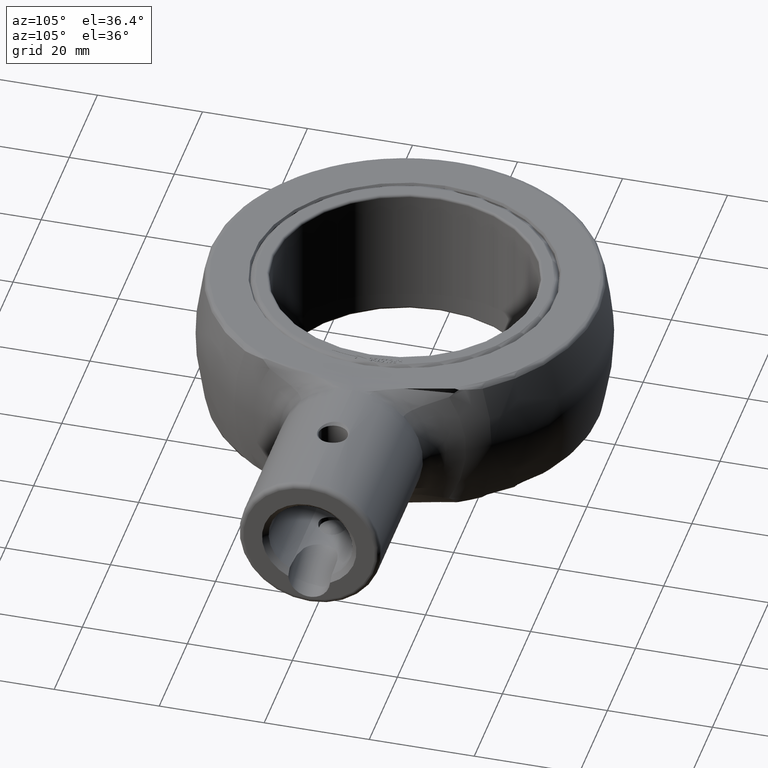
[diagram: clean part render]
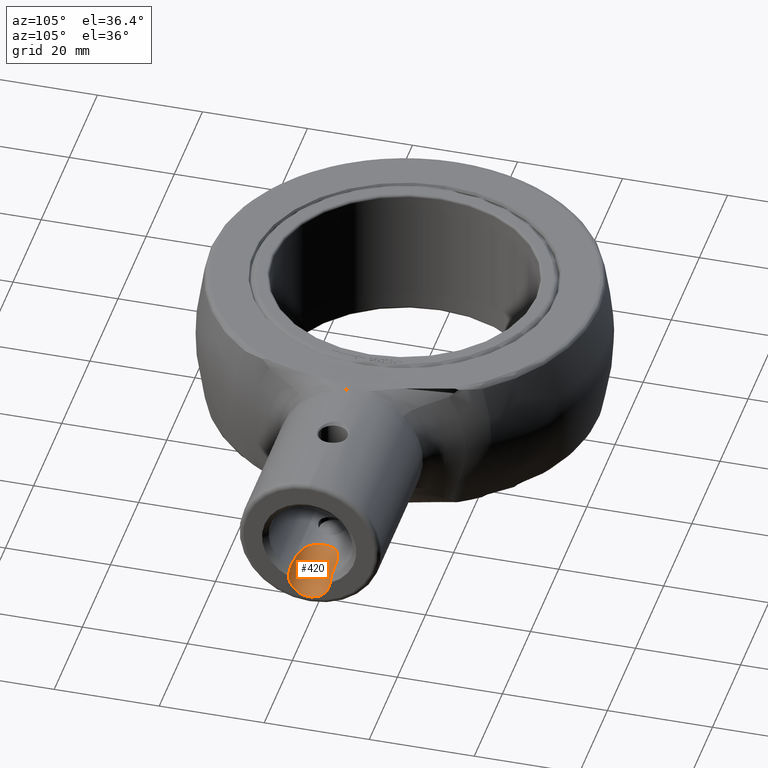
[diagram: same view with one face highlighted and labeled with its STEP entity id]
A machine part, auxiliary view. The second image highlights one B-rep face of the part: STEP entity #420.
In plain terms, the highlighted cylindrical surface (edge-blend (fillet) strip) has radius 4 mm, axis along (0.9397, 0, -0.342).
Its self-contained STEP definition (entity closure, byte-faithful):
#420 = ADVANCED_FACE( '', ( #862 ), #863, .F. );
#862 = FACE_OUTER_BOUND( '', #2805, .T. );
#863 = CYLINDRICAL_SURFACE( '', #2806, 4.00000000000000 );
#2805 = EDGE_LOOP( '', ( #4022, #4023, #4024, #4025, #4026, #4027 ) );
#2806 = AXIS2_PLACEMENT_3D( '', #4028, #4029, #4030 );
#4022 = ORIENTED_EDGE( '', *, *, #4435, .F. );
#4023 = ORIENTED_EDGE( '', *, *, #4604, .F. );
#4024 = ORIENTED_EDGE( '', *, *, #4617, .F. );
#4025 = ORIENTED_EDGE( '', *, *, #4554, .T. );
#4026 = ORIENTED_EDGE( '', *, *, #4437, .F. );
#4027 = ORIENTED_EDGE( '', *, *, #4754, .T. );
#4028 = CARTESIAN_POINT( '', ( 114.458834932347, 0.000000000000000, -24.6496330340612 ) );
#4029 = DIRECTION( '', ( 0.939692620785908, -0.000000000000000, -0.342020143325669 ) );
#4030 = DIRECTION( '', ( 0.342020143325669, 0.000000000000000, 0.939692620785908 ) );
#4435 = EDGE_CURVE( '', #4849, #4852, #4853, .T. );
#4437 = EDGE_CURVE( '', #4854, #4856, #4857, .T. );
#4554 = EDGE_CURVE( '', #5054, #4856, #5055, .T. );
#4604 = EDGE_CURVE( '', #5131, #4849, #5133, .T. );
#4617 = EDGE_CURVE( '', #5054, #5131, #5152, .T. );
#4754 = EDGE_CURVE( '', #4854, #4852, #5352, .F. );
#4849 = VERTEX_POINT( '', #5576 );
#4852 = VERTEX_POINT( '', #5582 );
#4853 = B_SPLINE_CURVE_WITH_KNOTS( '', 3, ( #5583, #5584, #5585, #5586 ), .UNSPECIFIED., .F., .F., ( 4, 4 ), ( -0.000205837076860266, 0.000437047054691737 ), .UNSPECIFIED. );
#4854 = VERTEX_POINT( '', #5587 );
#4856 = VERTEX_POINT( '', #5589 );
#4857 = B_SPLINE_CURVE_WITH_KNOTS( '', 3, ( #5590, #5591, #5592, #5593 ), .UNSPECIFIED., .F., .F., ( 4, 4 ), ( 3.04000446895297E-007, 0.000643188131998897 ), .UNSPECIFIED. );
#5054 = VERTEX_POINT( '', #6075 );
#5055 = LINE( '', #6076, #6077 );
#5131 = VERTEX_POINT( '', #6386 );
#5133 = LINE( '', #6389, #6390 );
#5152 = B_SPLINE_CURVE_WITH_KNOTS( '', 3, ( #6521, #6522, #6523, #6524, #6525, #6526, #6527, #6528, #6529, #6530, #6531, #6532, #6533, #6534, #6535, #6536, #6537, #6538, #6539, #6540, #6541, #6542, #6543, #6544, #6545, #6546, #6547, #6548, #6549, #6550, #6551, #6552, #6553, #6554, #6555, #6556, #6557, #6558, #6559, #6560, #6561, #6562 ), .UNSPECIFIED., .F., .F., ( 4, 2, 2, 2, 2, 2, 2, 2, 2, 2, 2, 2, 2, 2, 2, 2, 2, 2, 2, 2, 4 ), ( 0.000000000000000, 0.00264265898961198, 0.00396398848441800, 0.00528531797922401, 0.00594598272662700, 0.00660664747403000, 0.00792797696883600, 0.00858864171623899, 0.00924930646364199, 0.00990997121104499, 0.0105706359584480, 0.0112313007058510, 0.0118919654532540, 0.0125526302006570, 0.0132132949480600, 0.0145346244428660, 0.0151952891902690, 0.0158559539376720, 0.0171772834324780, 0.0184986129272841, 0.0211412719168962 ), .UNSPECIFIED. );
#5352 = ELLIPSE( '', #7473, 4.25671108990365, 4.00000000000000 );
#5576 = CARTESIAN_POINT( '', ( 67.5755454557239, 4.00000000000000, -7.58551118008447 ) );
#5582 = CARTESIAN_POINT( '', ( 68.0000000000000, 3.98809634791307, -8.06815267082635 ) );
#5583 = CARTESIAN_POINT( '', ( 67.5755454557239, 4.00000000000009, -7.58551118008446 ) );
#5584 = CARTESIAN_POINT( '', ( 67.7174955626860, 4.00000000000009, -7.74598811641722 ) );
#5585 = CARTESIAN_POINT( '', ( 67.8590166087159, 3.99608142140641, -7.90693909232155 ) );
#5586 = CARTESIAN_POINT( '', ( 67.9999999999996, 3.98809634791310, -8.06815267082671 ) );
#5587 = CARTESIAN_POINT( '', ( 68.0000000000000, -3.98809634791307, -8.06815267082635 ) );
#5589 = CARTESIAN_POINT( '', ( 67.5755454557239, -4.00000000000000, -7.58551118008447 ) );
#5590 = CARTESIAN_POINT( '', ( 67.9999999999996, -3.98809634791310, -8.06815267082670 ) );
#5591 = CARTESIAN_POINT( '', ( 67.8590166087159, -3.99608142140641, -7.90693909232154 ) );
#5592 = CARTESIAN_POINT( '', ( 67.7174955626860, -4.00000000000009, -7.74598811641722 ) );
#5593 = CARTESIAN_POINT( '', ( 67.5755454557239, -4.00000000000009, -7.58551118008446 ) );
#6075 = CARTESIAN_POINT( '', ( 65.7696067059958, -4.00000000000000, -6.92820323027551 ) );
#6076 = CARTESIAN_POINT( '', ( 21.5411650676528, -4.00000000000000, 9.16963303406121 ) );
#6077 = VECTOR( '', #8003, 1000.00000000000 );
#6386 = CARTESIAN_POINT( '', ( 65.7696067059958, 4.00000000000000, -6.92820323027551 ) );
#6389 = CARTESIAN_POINT( '', ( 21.5411650676528, 4.00000000000000, 9.16963303406121 ) );
#6390 = VECTOR( '', #8020, 1000.00000000000 );
#6521 = CARTESIAN_POINT( '', ( 65.7696067059958, -4.00000000000000, -6.92820323027551 ) );
#6522 = CARTESIAN_POINT( '', ( 64.8842861157169, -4.00000000000001, -6.92820323027550 ) );
#6523 = CARTESIAN_POINT( '', ( 64.0028062951544, -3.96712059337174, -6.94777396570291 ) );
#6524 = CARTESIAN_POINT( '', ( 62.6895964861945, -3.83854868619721, -7.01911292143865 ) );
#6525 = CARTESIAN_POINT( '', ( 62.2533838027106, -3.78225968573239, -7.04994341662600 ) );
#6526 = CARTESIAN_POINT( '', ( 61.3850997444337, -3.63197341293456, -7.12853138000256 ) );
#6527 = CARTESIAN_POINT( '', ( 60.9519977067740, -3.53768564082012, -7.17652407146705 ) );
#6528 = CARTESIAN_POINT( '', ( 60.3186739432842, -3.35715819708139, -7.26181232201521 ) );
#6529 = CARTESIAN_POINT( '', ( 60.1099195857097, -3.29035886293787, -7.29247894611803 ) );
#6530 = CARTESIAN_POINT( '', ( 59.6981010518759, -3.14033750502687, -7.35832800172771 ) );
#6531 = CARTESIAN_POINT( '', ( 59.4941465827943, -3.05669094899072, -7.39368837720237 ) );
#6532 = CARTESIAN_POINT( '', ( 58.9009399398692, -2.77821512906985, -7.50476316774118 ) );
#6533 = CARTESIAN_POINT( '', ( 58.5296837657782, -2.55734516815804, -7.58572181489016 ) );
#6534 = CARTESIAN_POINT( '', ( 58.0269855812569, -2.14266258791558, -7.70907221881125 ) );
#6535 = CARTESIAN_POINT( '', ( 57.8673378934484, -1.98854305517763, -7.75080137052656 ) );
#6536 = CARTESIAN_POINT( '', ( 57.5832126533756, -1.65562078385178, -7.82867454858928 ) );
#6537 = CARTESIAN_POINT( '', ( 57.4575007141909, -1.47634179547753, -7.86508095554304 ) );
#6538 = CARTESIAN_POINT( '', ( 57.2456473108766, -1.08605409561138, -7.92840274177121 ) );
#6539 = CARTESIAN_POINT( '', ( 57.1630942565275, -0.881082664127801, -7.95420149761570 ) );
#6540 = CARTESIAN_POINT( '', ( 57.0502338048803, -0.455360765308113, -7.98988577509820 ) );
#6541 = CARTESIAN_POINT( '', ( 57.0198169505644, -0.229932691175481, -7.99977729321978 ) );
#6542 = CARTESIAN_POINT( '', ( 57.0184601917464, 0.214165206603526, -8.00021493760427 ) );
#6543 = CARTESIAN_POINT( '', ( 57.0464647412299, 0.435490173076527, -7.99109516711024 ) );
#6544 = CARTESIAN_POINT( '', ( 57.1584470215487, 0.868801376093193, -7.95565445639499 ) );
#6545 = CARTESIAN_POINT( '', ( 57.2403047108108, 1.07396563541548, -7.93004816908578 ) );
#6546 = CARTESIAN_POINT( '', ( 57.4497982499607, 1.46426293143922, -7.86733755584995 ) );
#6547 = CARTESIAN_POINT( '', ( 57.5762623762768, 1.64622110364035, -7.83065415925374 ) );
#6548 = CARTESIAN_POINT( '', ( 57.8582046210209, 1.97902745588875, -7.75323408731784 ) );
#6549 = CARTESIAN_POINT( '', ( 58.0155601400568, 2.13232373101013, -7.71197771012738 ) );
#6550 = CARTESIAN_POINT( '', ( 58.5224802755216, 2.55315184264597, -7.58729427725824 ) );
#6551 = CARTESIAN_POINT( '', ( 58.8956281949038, 2.77533585676592, -7.50584695496394 ) );
#6552 = CARTESIAN_POINT( '', ( 59.4897416059900, 3.05481251328807, -7.39446938028393 ) );
#6553 = CARTESIAN_POINT( '', ( 59.6942115571012, 3.13880273034250, -7.35898422814262 ) );
#6554 = CARTESIAN_POINT( '', ( 60.1060623391820, 3.28906938179212, -7.29306204908576 ) );
#6555 = CARTESIAN_POINT( '', ( 60.3143051571191, 3.35578789635909, -7.26244404122873 ) );
#6556 = CARTESIAN_POINT( '', ( 60.9447103320316, 3.53585366465168, -7.17742030896092 ) );
#6557 = CARTESIAN_POINT( '', ( 61.3724864306049, 3.62937618743206, -7.12985703165481 ) );
#6558 = CARTESIAN_POINT( '', ( 62.2387615807870, 3.78013006211755, -7.05108853406419 ) );
#6559 = CARTESIAN_POINT( '', ( 62.6783665763621, 3.83726057315865, -7.01982057419062 ) );
#6560 = CARTESIAN_POINT( '', ( 63.9988318928385, 3.96710312850711, -6.94779757681385 ) );
#6561 = CARTESIAN_POINT( '', ( 64.8830023455098, 4.00000000000005, -6.92820323027565 ) );
#6562 = CARTESIAN_POINT( '', ( 65.7696067059958, 4.00000000000005, -6.92820323027565 ) );
#7473 = AXIS2_PLACEMENT_3D( '', #8098, #8099, #8100 );
#8003 = DIRECTION( '', ( 0.939692620785908, 0.000000000000000, -0.342020143325669 ) );
#8020 = DIRECTION( '', ( 0.939692620785908, 0.000000000000000, -0.342020143325669 ) );
#8098 = CARTESIAN_POINT( '', ( 68.0000000000000, 0.000000000000000, -7.74000000000000 ) );
#8099 = DIRECTION( '', ( -1.00000000000000, 0.000000000000000, 0.000000000000000 ) );
#8100 = DIRECTION( '', ( 0.000000000000000, 0.000000000000000, 1.00000000000000 ) );